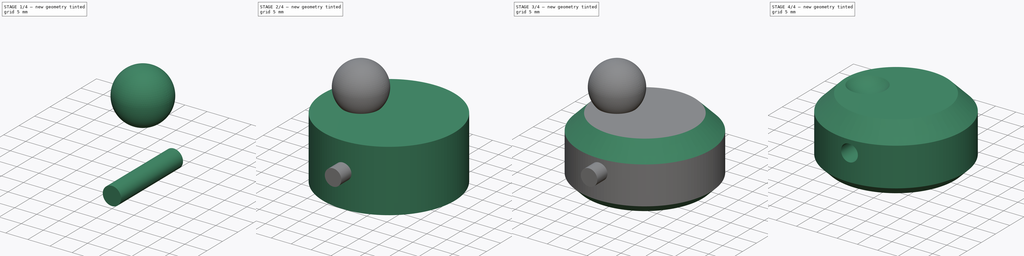
[diagram: build sequence overview — one tinted view per stage of 4, left to right]
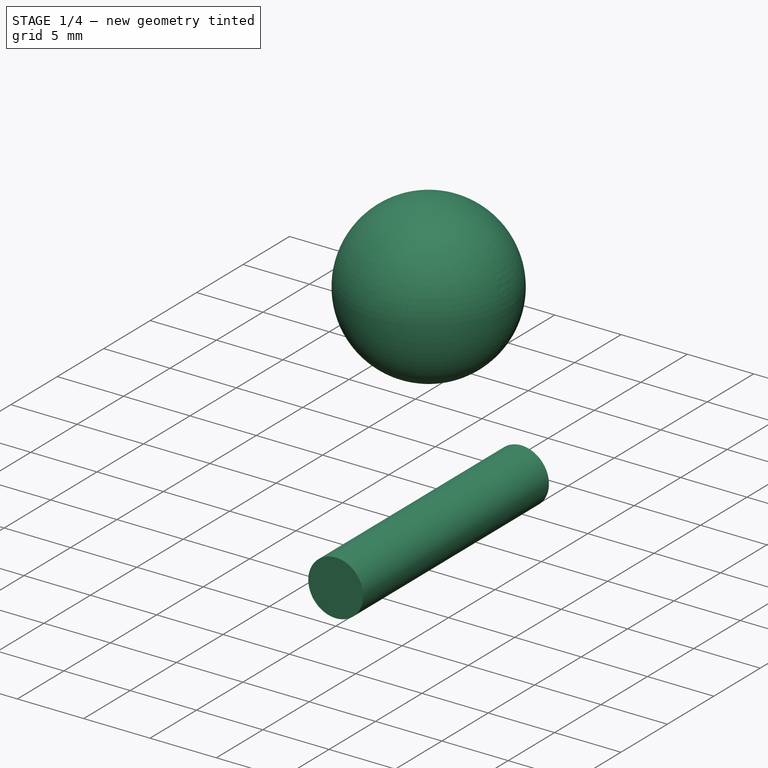
[diagram: stage 1 of 4 — iso view after this stage's code; geometry added in this stage tinted green]
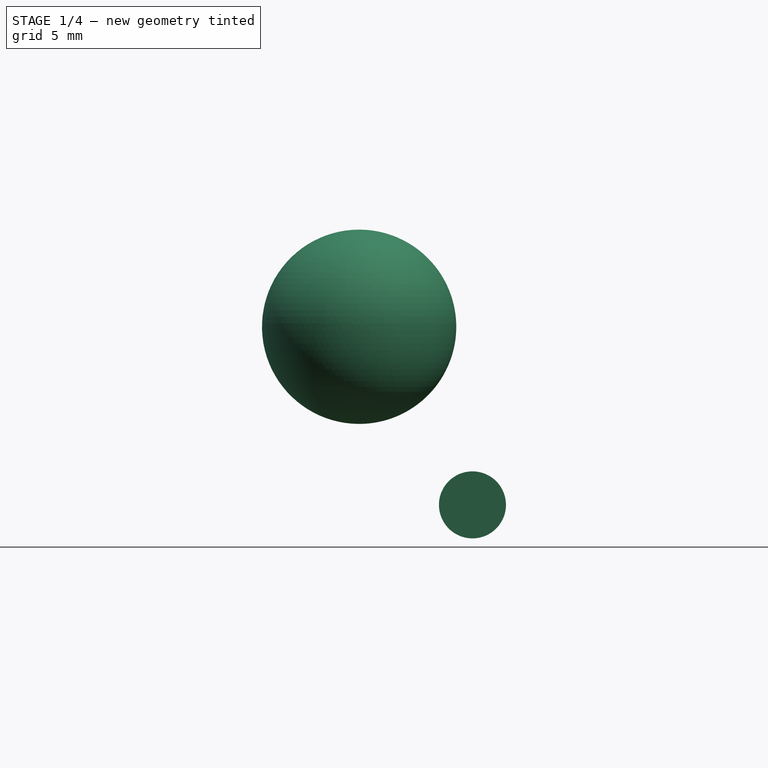
[diagram: stage 1 of 4 — front view after this stage's code; geometry added in this stage tinted green]
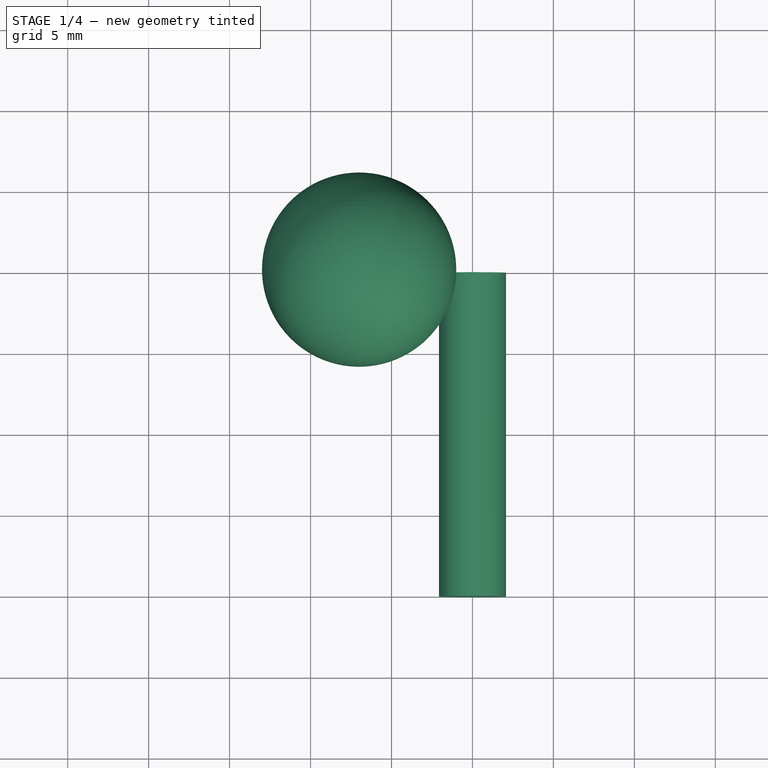
[diagram: stage 1 of 4 — top view after this stage's code; geometry added in this stage tinted green]
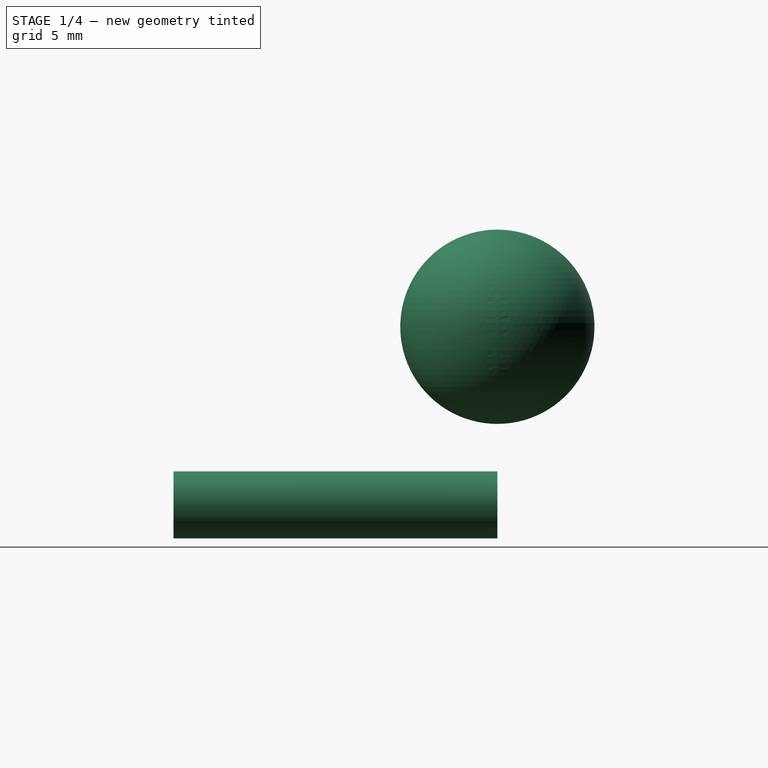
[diagram: stage 1 of 4 — right view after this stage's code; geometry added in this stage tinted green]
FCSTD DOCUMENT  (FreeCAD 0.14R3310 (Git))
Label: 48. BOTON PANTALLA LCD
License: CC-BY 3.0
LicenseURL: http://creativecommons.org/licenses/by/3.0/
objects: Sketcher::SketchObject×3, Part::Cut×3, PartDesign::Pad×2, PartDesign::Chamfer×2, PartDesign::Revolution×1, Part::Sphere×1
note: 15 computed .brp shape members not serialized (recipe doc carries the construction recipe); baked Part::Feature solids carry a one-line shape summary decoded from their .brp

FEATURE [Sketcher::SketchObject] Sketch002
  Placement = pos=(0,0,0) rot=(-1,0,0;4.71239rad)
  sketch-geometry (1):
    g0: Circle CenterX=0 CenterY=8.5 CenterZ=0 NormalX=0 NormalY=0 NormalZ=1 Radius=2.07
  constraints (3):
    c: PointOnObject(g0,g-2)
    c: Radius(g0) = 2.07
    c: DistanceY(g-1,g0) = 8.5
FEATURE [PartDesign::Pad] Pad001
  Length = 20
  Length2 = 100
  Placement = pos=(0,0,0) rot=(-1,0,0;4.71239rad)
  Sketch = -> Sketch002
  Type = 0
FEATURE [Part::Sphere] Sphere  label="Esféra"
  Angle1 = -90
  Angle2 = 90
  Angle3 = 360
  Placement = pos=(-7,0,19.5) rot=(0,0,1;0rad)
  Radius = 6
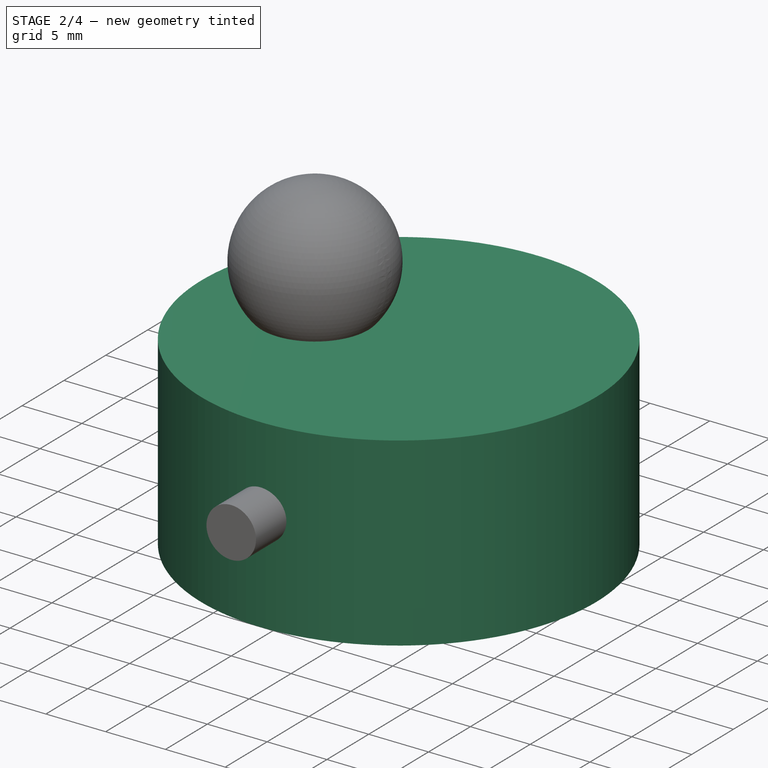
[diagram: stage 2 of 4 — iso view after this stage's code; geometry added in this stage tinted green]
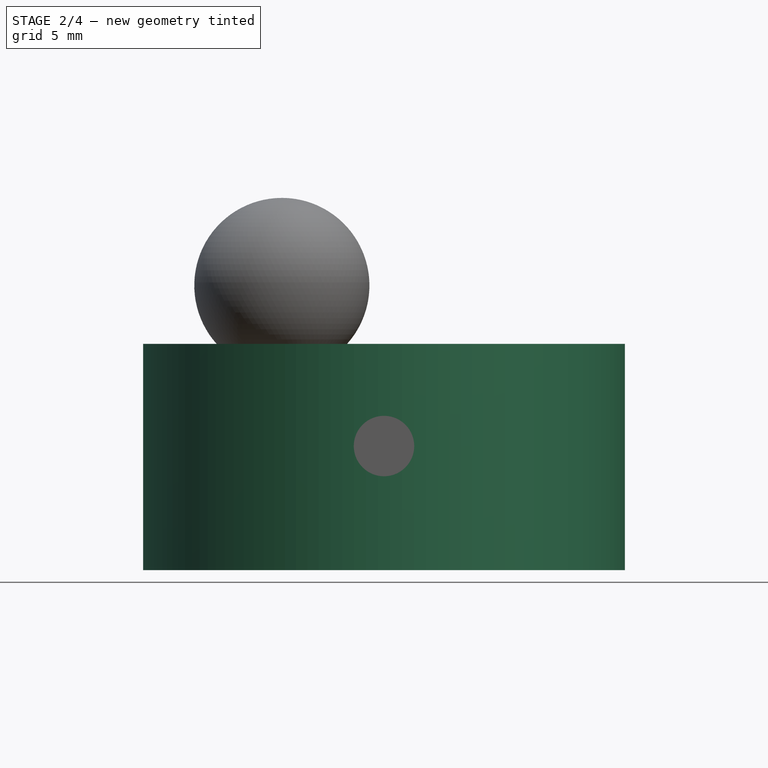
[diagram: stage 2 of 4 — front view after this stage's code; geometry added in this stage tinted green]
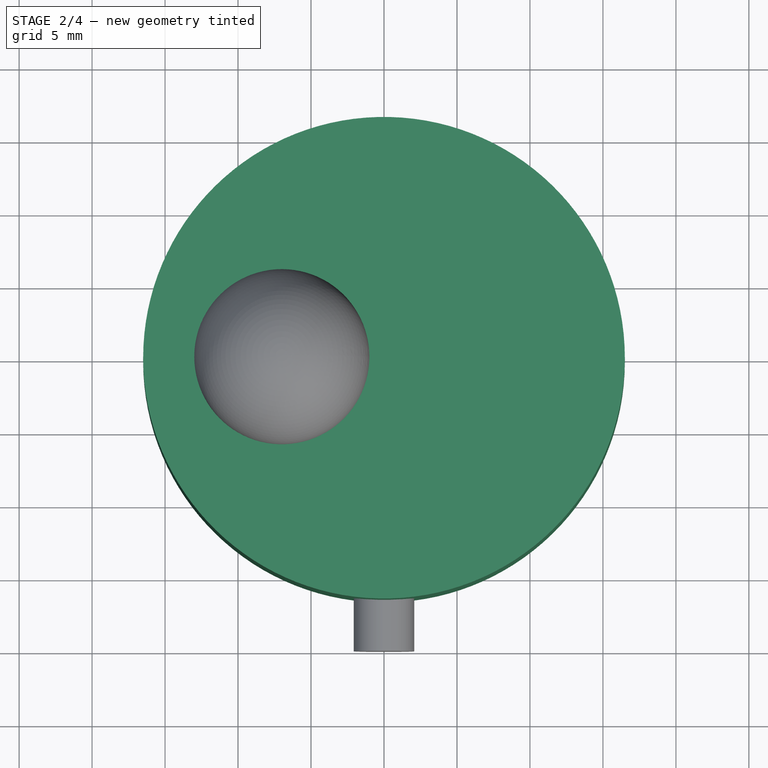
[diagram: stage 2 of 4 — top view after this stage's code; geometry added in this stage tinted green]
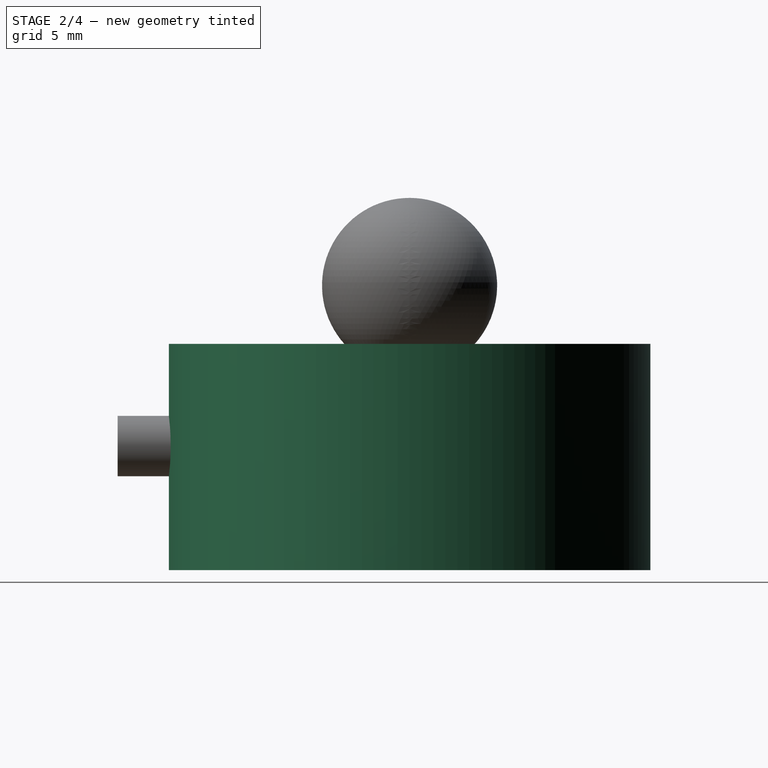
[diagram: stage 2 of 4 — right view after this stage's code; geometry added in this stage tinted green]
FEATURE [Sketcher::SketchObject] Sketch
  sketch-geometry (1):
    g0: Circle CenterX=0 CenterY=0 CenterZ=0 NormalX=0 NormalY=0 NormalZ=1 Radius=16.5
  constraints (2):
    c: Coincident(g0,g-1)
    c: Radius(g0) = 16.5
FEATURE [PartDesign::Pad] Pad
  Length = 15.5
  Length2 = 100
  Sketch = -> Sketch
  Type = 0
FEATURE [Sketcher::SketchObject] Sketch001
  Placement = pos=(0,0,0) rot=(0.57735,0.57735,0.57735;2.0944rad)
  sketch-geometry (6):
    g0: LineSegment StartX=3.5 StartY=0 StartZ=0 EndX=3.5 EndY=6 EndZ=0
    g1: LineSegment StartX=3.5 StartY=6 StartZ=0 EndX=3 EndY=6 EndZ=0
    g2: LineSegment StartX=3 StartY=6 StartZ=0 EndX=3 EndY=11 EndZ=0
    g3: LineSegment StartX=3 StartY=11 StartZ=0 EndX=0 EndY=12.7321 EndZ=0
    g4: LineSegment StartX=0 StartY=12.7321 StartZ=0 EndX=0 EndY=0 EndZ=0
    g5: LineSegment StartX=0 StartY=0 StartZ=0 EndX=3.5 EndY=0 EndZ=0
  constraints (17):
    c: PointOnObject(g0,g-1)
    c: Vertical(g0)
    c: Coincident(g0,g1)
    c: Horizontal(g1)
    c: Coincident(g1,g2)
    c: Vertical(g2)
    c: Coincident(g2,g3)
    c: PointOnObject(g3,g-2)
    c: Coincident(g3,g4)
    c: Coincident(g4,g-1)
    c: Coincident(g4,g5)
    c: Coincident(g5,g0)
    c: Distance(g5) = 3.5
    c: Distance(g1,g4) = 3
    c: Distance(g0) = 6
    c: Distance(g2) = 5
    c: Angle(g3,g2) = 2.0944
FEATURE [PartDesign::Revolution] Revolution
  Angle = 360
  Axis = (0,0,1)
  Base = (0,0,0)
  Placement = pos=(0,0,0) rot=(0.57735,0.57735,0.57735;2.0944rad)
  ReferenceAxis = -> Sketch001 [V_Axis]
  Reversed = true
  Sketch = -> Sketch001
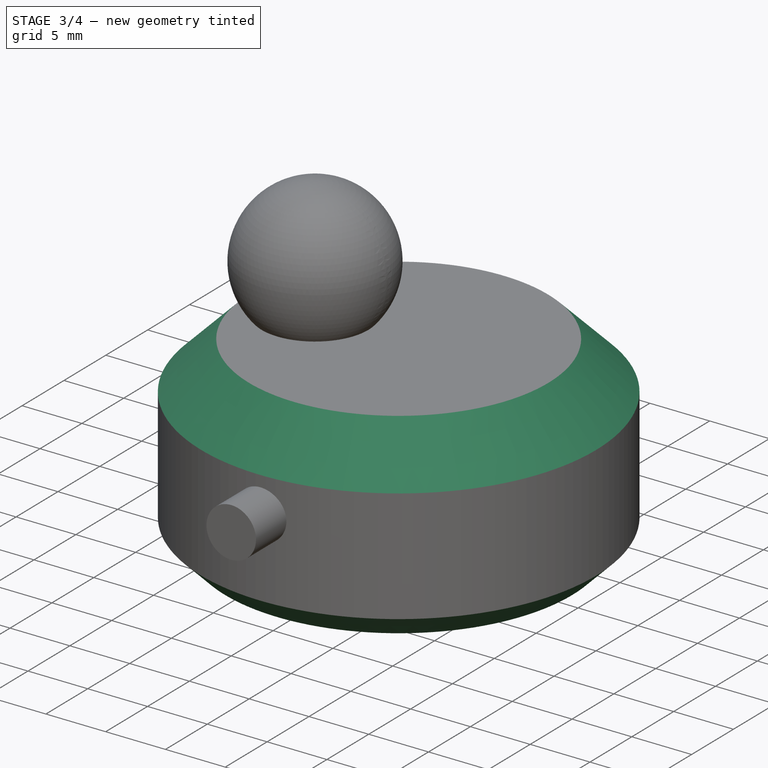
[diagram: stage 3 of 4 — iso view after this stage's code; geometry added in this stage tinted green]
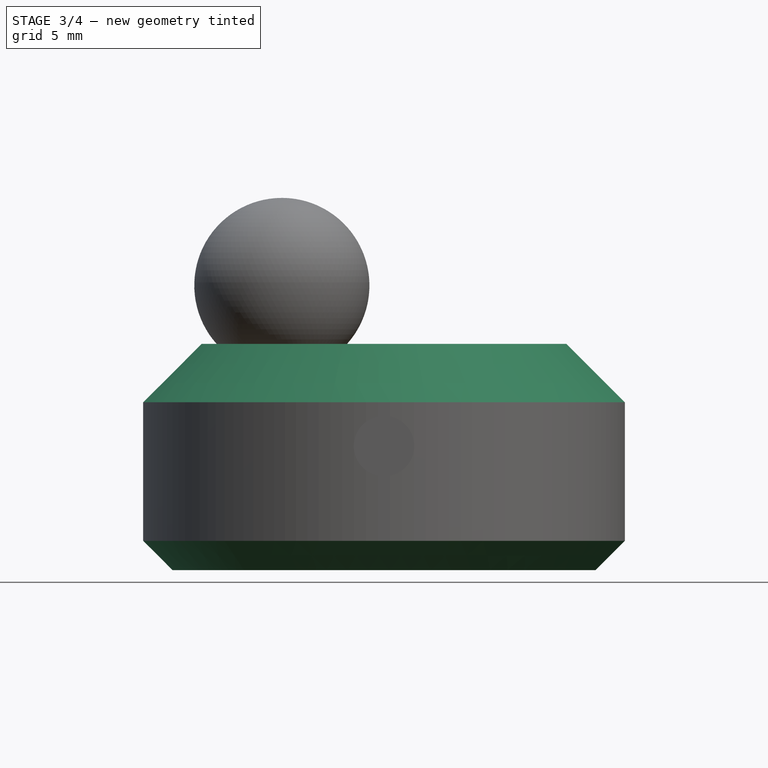
[diagram: stage 3 of 4 — front view after this stage's code; geometry added in this stage tinted green]
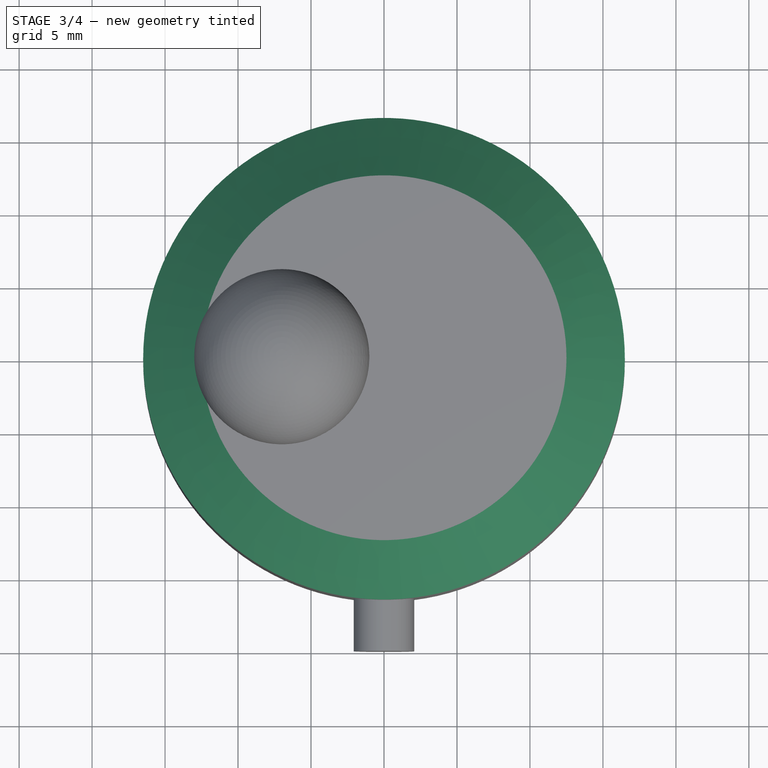
[diagram: stage 3 of 4 — top view after this stage's code; geometry added in this stage tinted green]
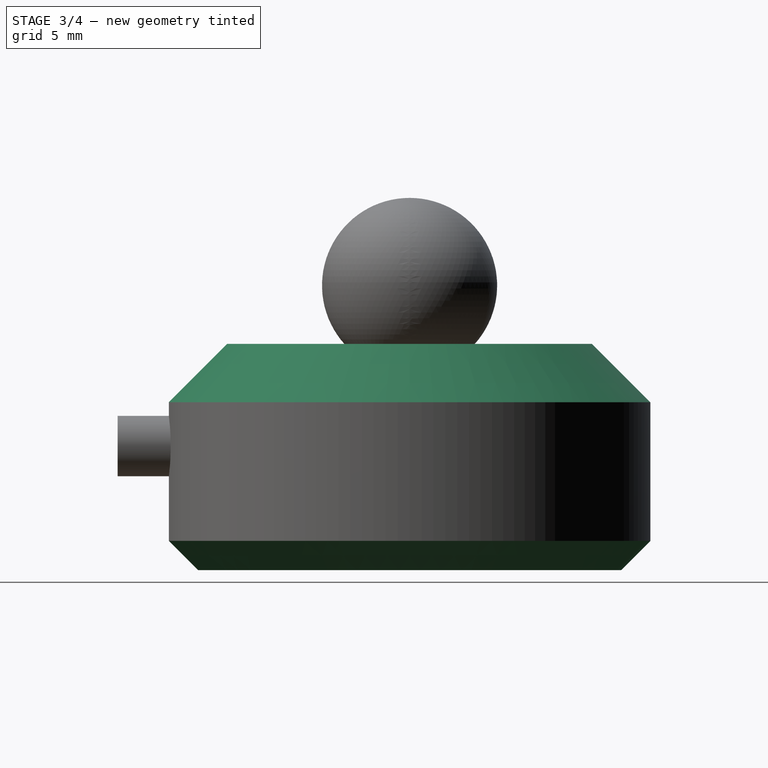
[diagram: stage 3 of 4 — right view after this stage's code; geometry added in this stage tinted green]
FEATURE [PartDesign::Chamfer] Chamfer
  Base = -> Pad [Edge3]
  Size = 4
FEATURE [PartDesign::Chamfer] Chamfer001
  Base = -> Chamfer [Edge3]
  Size = 2
FEATURE [Part::Cut] Cut
  Base = -> Chamfer001
  Tool = -> Revolution
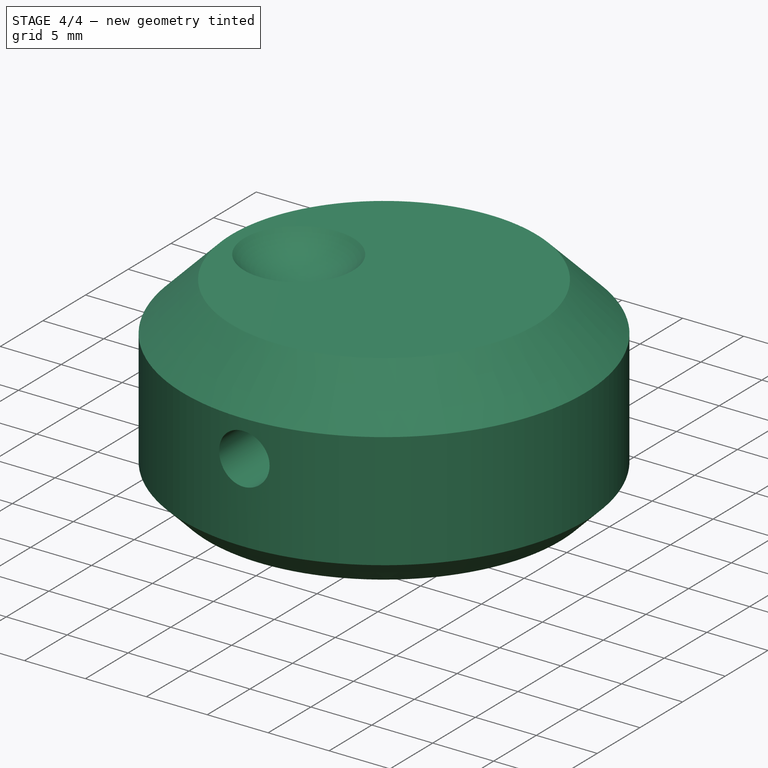
[diagram: stage 4 of 4 — iso view after this stage's code; geometry added in this stage tinted green]
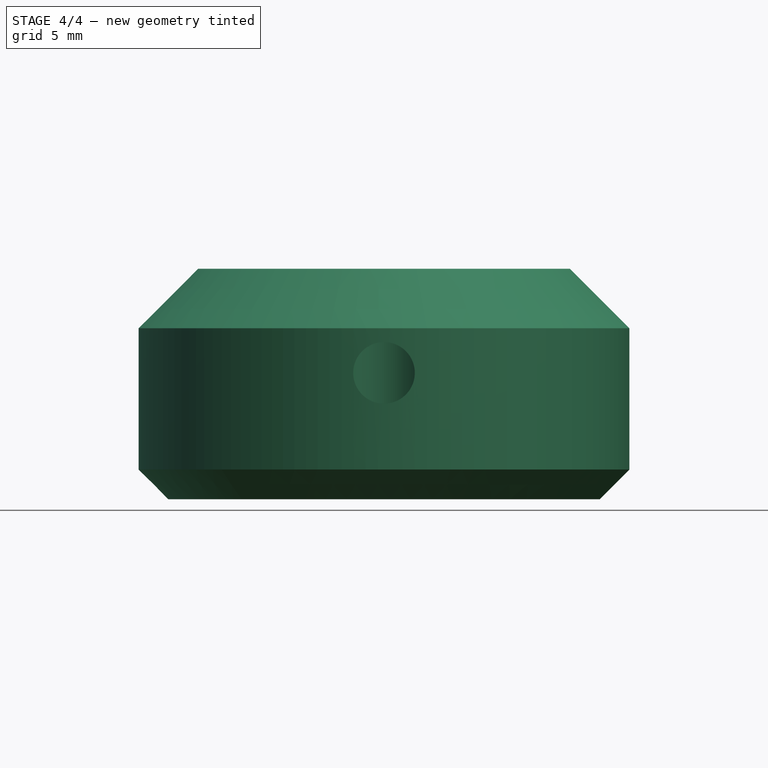
[diagram: stage 4 of 4 — front view after this stage's code; geometry added in this stage tinted green]
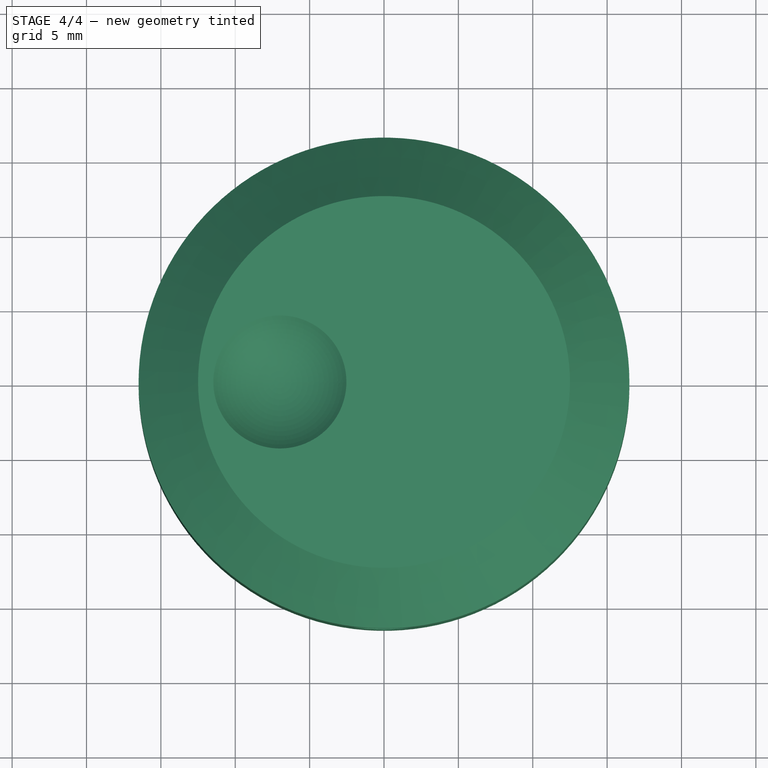
[diagram: stage 4 of 4 — top view after this stage's code; geometry added in this stage tinted green]
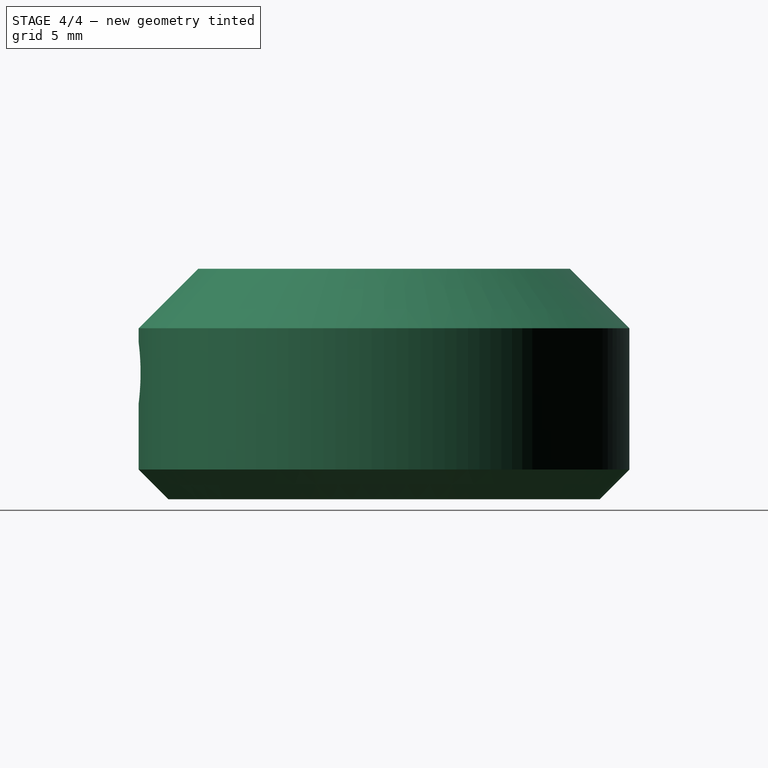
[diagram: stage 4 of 4 — right view after this stage's code; geometry added in this stage tinted green]
FEATURE [Part::Cut] Cut001
  Base = -> Cut
  Tool = -> Pad001
FEATURE [Part::Cut] Cut002
  Base = -> Cut001
  Tool = -> Sphere
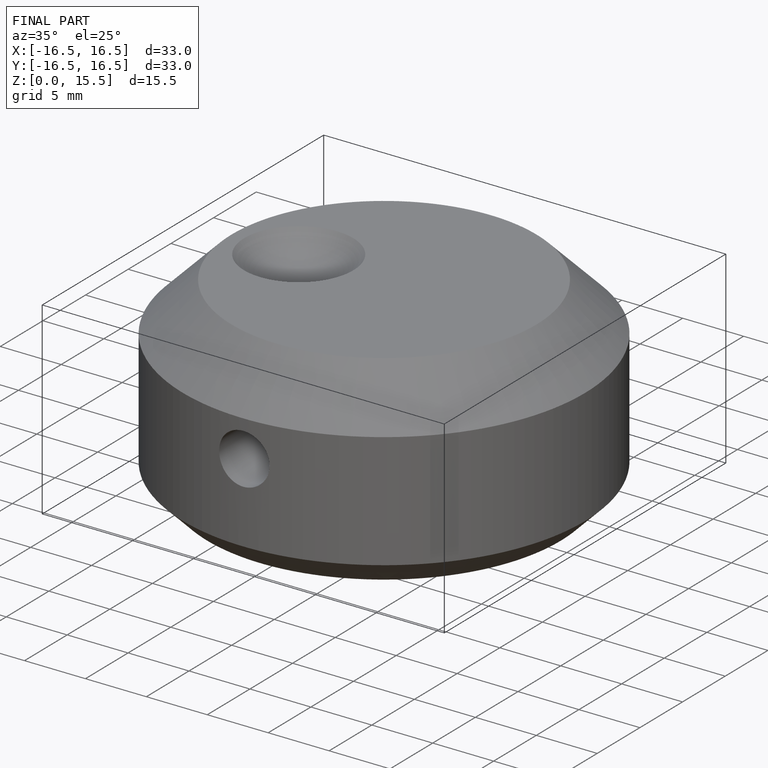
[diagram: finished part — iso view with bounding-box wireframe]
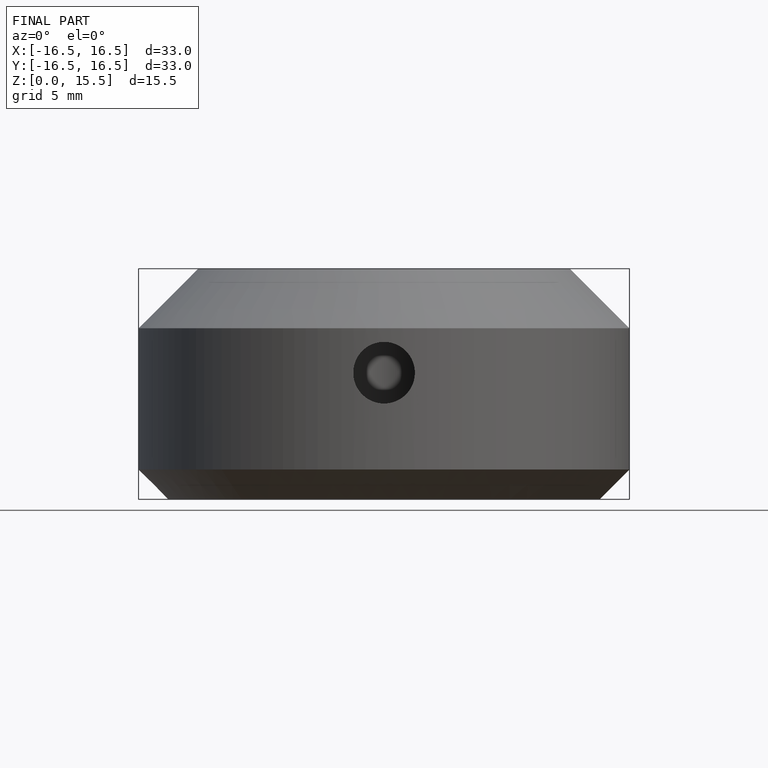
[diagram: finished part — front view with bounding-box wireframe]
